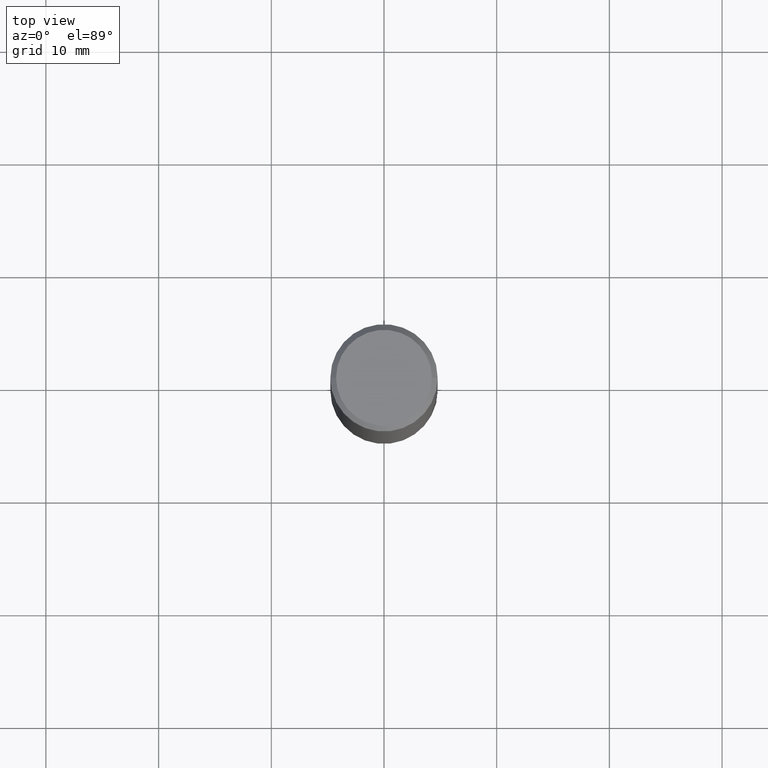
[diagram: clean part render]
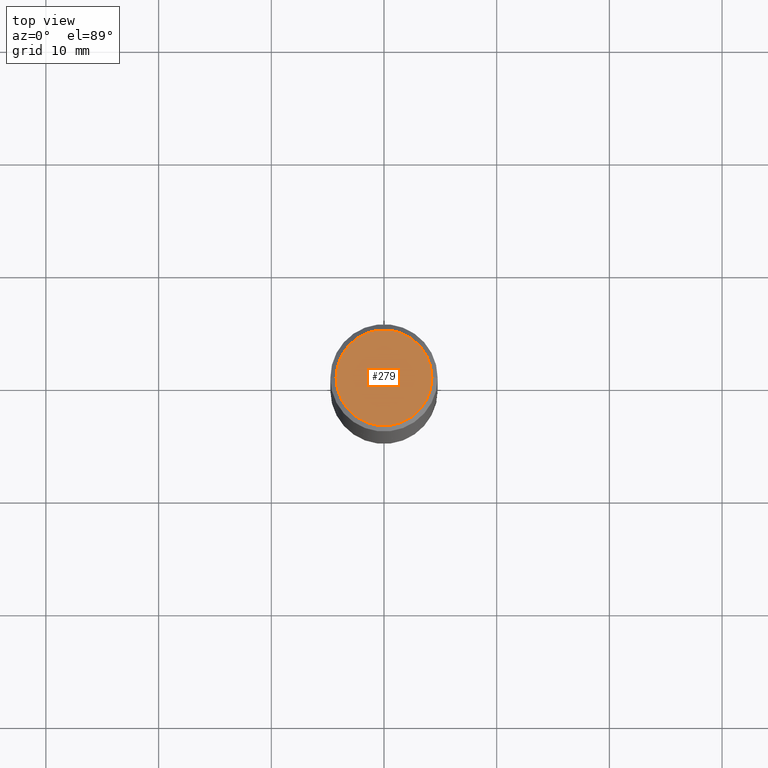
[diagram: same view with one face highlighted and labeled with its STEP entity id]
A machine part, top view. The second image highlights one B-rep face of the part: STEP entity #279.
In plain terms, the highlighted planar face has unit normal (0, -0, -1).
Its self-contained STEP definition (entity closure, byte-faithful):
#4 = VERTEX_POINT ( 'NONE', #358 ) ;
#19 = VERTEX_POINT ( 'NONE', #276 ) ;
#25 = ORIENTED_EDGE ( 'NONE', *, *, #240, .T. ) ;
#63 = DIRECTION ( 'NONE',  ( -1.000000000000000000, 6.982962677686265922E-15, -4.876176775795935793E-29 ) ) ;
#64 = AXIS2_PLACEMENT_3D ( 'NONE', #125, #156, #63 ) ;
#71 = DIRECTION ( 'NONE',  ( -2.445468806185136597E-29, 3.491481338843145583E-15, 1.000000000000000000 ) ) ;
#95 = CARTESIAN_POINT ( 'NONE',  ( 0.000000000000000000, 0.000000000000000000, 0.000000000000000000 ) ) ;
#108 = DIRECTION ( 'NONE',  ( 1.000000000000000000, -6.982962677686265922E-15, 4.876176775795935793E-29 ) ) ;
#125 = CARTESIAN_POINT ( 'NONE',  ( 1.169646248512448806E-15, 0.1674999999999998990, -5.848231242562264739E-16 ) ) ;
#130 = AXIS2_PLACEMENT_3D ( 'NONE', #180, #304, #108 ) ;
#141 = EDGE_CURVE ( 'NONE', #19, #4, #352, .T. ) ;
#156 = DIRECTION ( 'NONE',  ( 2.438088387897960049E-29, -3.491481338843145188E-15, -1.000000000000000000 ) ) ;
#171 = AXIS2_PLACEMENT_3D ( 'NONE', #95, #71, #296 ) ;
#180 = CARTESIAN_POINT ( 'NONE',  ( 0.000000000000000000, 0.000000000000000000, 0.000000000000000000 ) ) ;
#221 = EDGE_LOOP ( 'NONE', ( #254, #25 ) ) ;
#229 = CIRCLE ( 'NONE', #130, 0.1674999999999998990 ) ;
#240 = EDGE_CURVE ( 'NONE', #4, #19, #229, .T. ) ;
#254 = ORIENTED_EDGE ( 'NONE', *, *, #141, .T. ) ;
#260 = FACE_OUTER_BOUND ( 'NONE', #221, .T. ) ;
#276 = CARTESIAN_POINT ( 'NONE',  ( -0.1674999999999998990, 1.204561061900879864E-15, -8.301862719484106184E-30 ) ) ;
#279 = ADVANCED_FACE ( 'NONE', ( #260 ), #351, .F. ) ;
#296 = DIRECTION ( 'NONE',  ( 1.000000000000000000, -6.982962677686265922E-15, 4.876176775795935793E-29 ) ) ;
#304 = DIRECTION ( 'NONE',  ( -2.445468806185136597E-29, 3.491481338843145583E-15, 1.000000000000000000 ) ) ;
#351 = PLANE ( 'NONE',  #64 ) ;
#352 = CIRCLE ( 'NONE', #171, 0.1674999999999998990 ) ;
#358 = CARTESIAN_POINT ( 'NONE',  ( 0.1674999999999998990, -1.252653207992877500E-15, 8.469775550109235181E-30 ) ) ;